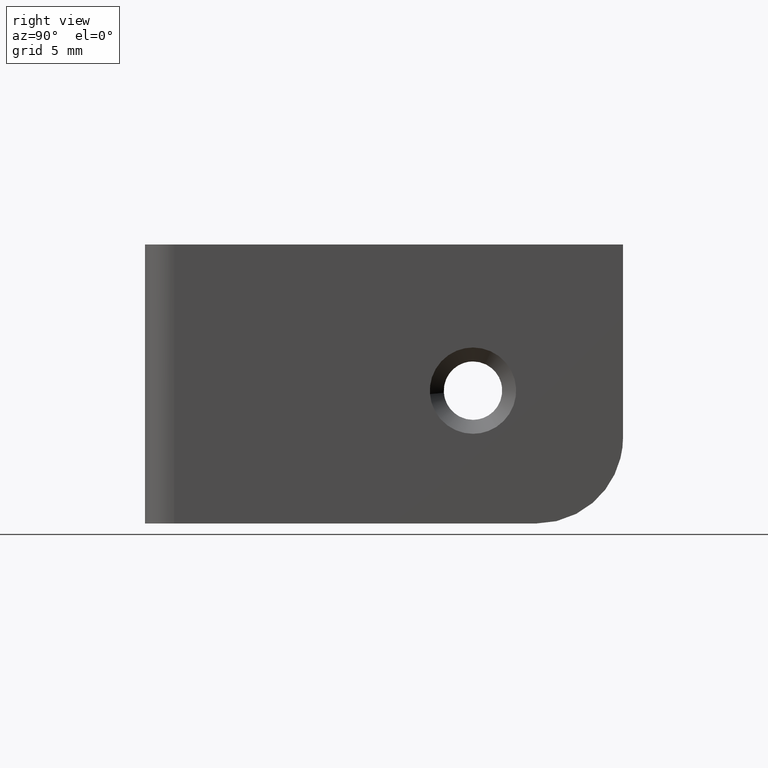
[diagram: clean part render]
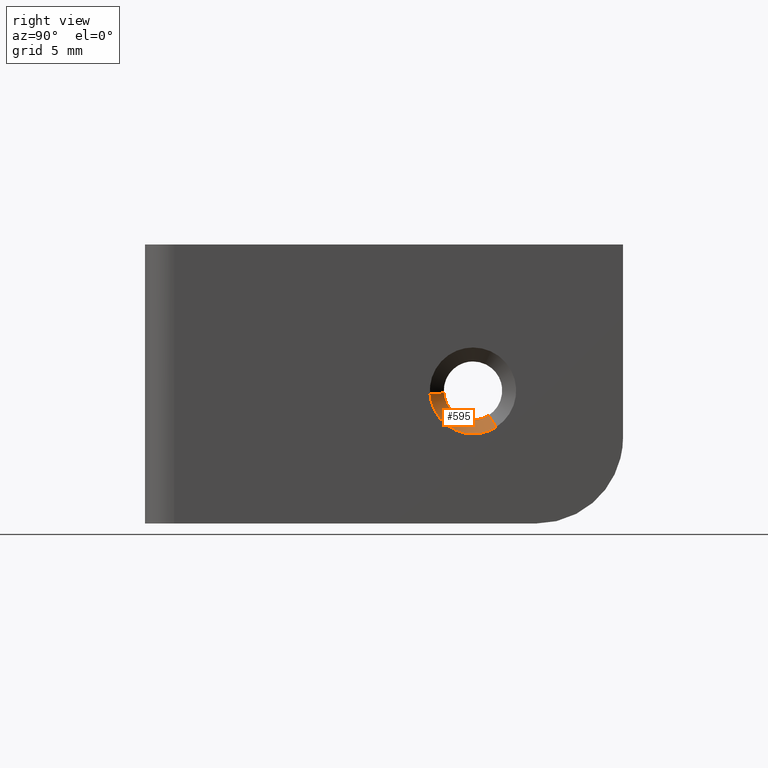
[diagram: same view with one face highlighted and labeled with its STEP entity id]
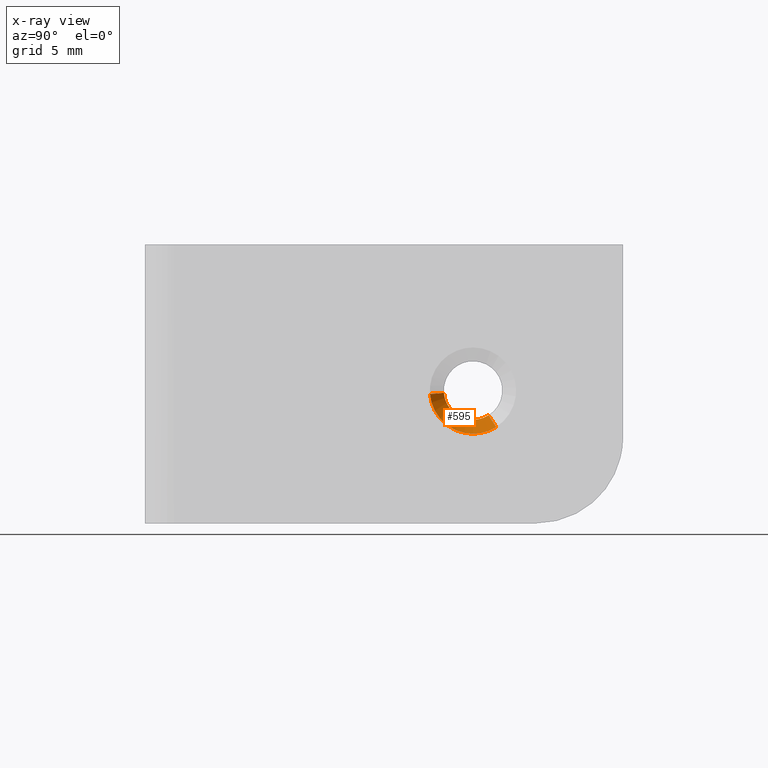
[diagram: x-ray of the same camera — body ghosted, the highlighted face saturated]
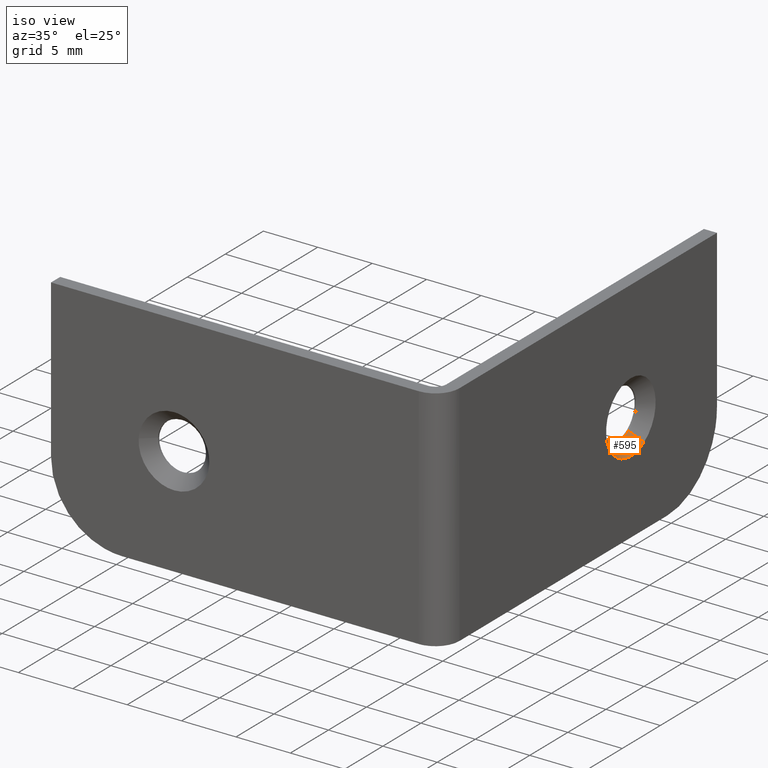
[diagram: same view with one face highlighted and labeled with its STEP entity id]
A machine part, right view. The second image highlights one B-rep face of the part: STEP entity #595.
The next image is the same camera in x-ray: the body ghosted, the highlighted face saturated — about 0% of this face is hidden behind the body in this view.
A second angle (iso view) of the same face is appended — the face is thin or edge-on in the first view.
In plain terms, the highlighted face is a freeform B-spline surface patch.
Its self-contained STEP definition (entity closure, byte-faithful):
#404=CARTESIAN_POINT('',(-1.049999999998008,25.883271745613801,8.145311892516467));
#405=VERTEX_POINT('',#404);
#421=CARTESIAN_POINT('',(2.692800E-012,26.448015078745200,7.260119841216241));
#422=VERTEX_POINT('',#421);
#423=CARTESIAN_POINT('',(-1.049999999998008,25.883271745613801,8.145311892516467));
#424=CARTESIAN_POINT('',(2.692800E-012,26.448015078745200,7.260119841216241));
#425=QUASI_UNIFORM_CURVE('',1,(#423,#424),.UNSPECIFIED.,.F.,.U.);
#426=EDGE_CURVE('',#405,#422,#425,.T.);
#445=CARTESIAN_POINT('',(1.813427E-012,21.460018665366619,9.745007938870440));
#446=VERTEX_POINT('',#445);
#462=CARTESIAN_POINT('',(-1.049999999995188,22.506781865785229,9.827389989361441));
#463=VERTEX_POINT('',#462);
#464=CARTESIAN_POINT('',(-1.049999999995188,22.506781865785229,9.827389989361441));
#465=CARTESIAN_POINT('',(1.813427E-012,21.460018665366619,9.745007938870440));
#466=QUASI_UNIFORM_CURVE('',1,(#464,#465),.UNSPECIFIED.,.F.,.U.);
#467=EDGE_CURVE('',#463,#446,#466,.T.);
#517=CARTESIAN_POINT('',(-1.076250000000000,22.532950945797609,9.829449540661596));
#518=CARTESIAN_POINT('',(-1.076250000000000,22.703501405136020,7.662400486459209));
#519=CARTESIAN_POINT('',(-1.076250000000000,24.870550459338400,7.832950945797611));
#520=CARTESIAN_POINT('',(-1.076250000000000,25.411608830290227,7.875533163083267));
#521=CARTESIAN_POINT('',(-1.076250000000000,25.869153162253689,8.167441693781010));
#522=CARTESIAN_POINT('',(0.026906249999996,21.433195358356581,9.742896898840074));
#523=CARTESIAN_POINT('',(0.026906249999996,21.690298459516494,6.476092257196653));
#524=CARTESIAN_POINT('',(0.026906249999996,24.957103101159920,6.733195358356579));
#525=CARTESIAN_POINT('',(0.026906249999996,25.772743150561581,6.797387622399005));
#526=CARTESIAN_POINT('',(0.026906249999996,26.462486626611316,7.237436794875944));
#534=(BOUNDED_SURFACE()B_SPLINE_SURFACE(2,1,((#517,#522),(#518,#523),(#519,#524),(#520,#525),(#521,#526)),.UNSPECIFIED.,.F.,.F.,.U.)B_SPLINE_SURFACE_WITH_KNOTS((3,2,3),(2,2),(0.0,5.429356045500637,7.166749980060842),(0.0,1.0),.UNSPECIFIED.)GEOMETRIC_REPRESENTATION_ITEM()RATIONAL_B_SPLINE_SURFACE(((1.0,1.0),(0.707106781186548,0.707106781186548),(1.0,1.0),(0.906274169979695,0.906274169979695),(0.872532871172386,0.872532871172386)))REPRESENTATION_ITEM('')SURFACE());
#535=CARTESIAN_POINT('',(-1.050000000000000,24.699999999999999,7.800000000000000));
#536=VERTEX_POINT('',#535);
#537=CARTESIAN_POINT('',(-1.049999999998008,25.883271745613794,8.145311892516467));
#538=CARTESIAN_POINT('',(-1.050000000000000,25.342021721874392,7.800000000000001));
#539=CARTESIAN_POINT('',(-1.050000000000000,24.699999999999999,7.800000000000000));
#547=(BOUNDED_CURVE()B_SPLINE_CURVE(2,(#537,#538,#539),.UNSPECIFIED.,.F.,.U.)B_SPLINE_CURVE_WITH_KNOTS((3,3),(0.407950112622453,0.500000000000000),.UNSPECIFIED.)CURVE()GEOMETRIC_REPRESENTATION_ITEM()RATIONAL_B_SPLINE_CURVE((0.863729296951775,0.892156848778297,1.0))REPRESENTATION_ITEM(''));
#548=EDGE_CURVE('',#405,#536,#547,.T.);
#549=ORIENTED_EDGE('',*,*,#548,.T.);
#550=CARTESIAN_POINT('',(-1.050000000000000,24.699999999999999,7.800000000000000));
#551=CARTESIAN_POINT('',(-1.050000000000000,22.666340918420630,7.799999999999999));
#552=CARTESIAN_POINT('',(-1.049999999995187,22.506781865785221,9.827389989361441));
#560=(BOUNDED_CURVE()B_SPLINE_CURVE(2,(#550,#551,#552),.UNSPECIFIED.,.F.,.U.)B_SPLINE_CURVE_WITH_KNOTS((3,3),(0.500000000000000,0.736331300626995),.UNSPECIFIED.)CURVE()GEOMETRIC_REPRESENTATION_ITEM()RATIONAL_B_SPLINE_CURVE((1.0,0.723120658611959,0.969723356159770))REPRESENTATION_ITEM(''));
#561=EDGE_CURVE('',#536,#463,#560,.T.);
#562=ORIENTED_EDGE('',*,*,#561,.T.);
#563=ORIENTED_EDGE('',*,*,#467,.T.);
#564=CARTESIAN_POINT('',(-3.940171E-015,24.699999999999999,6.750000000000001));
#565=VERTEX_POINT('',#564);
#566=CARTESIAN_POINT('',(-3.940171E-015,24.699999999999999,6.750000000000001));
#567=CARTESIAN_POINT('',(-3.940171E-015,21.695730902136713,6.750000000000001));
#568=CARTESIAN_POINT('',(1.813427E-012,21.460018665366622,9.745007938870440));
#576=(BOUNDED_CURVE()B_SPLINE_CURVE(2,(#566,#567,#568),.UNSPECIFIED.,.F.,.U.)B_SPLINE_CURVE_WITH_KNOTS((3,3),(0.500000000000000,0.736331300631294),.UNSPECIFIED.)CURVE()GEOMETRIC_REPRESENTATION_ITEM()RATIONAL_B_SPLINE_CURVE((1.0,0.723120658606922,0.969723356168742))REPRESENTATION_ITEM(''));
#577=EDGE_CURVE('',#565,#446,#576,.T.);
#578=ORIENTED_EDGE('',*,*,#577,.F.);
#579=CARTESIAN_POINT('',(2.692800E-012,26.448015078745197,7.260119841216241));
#580=CARTESIAN_POINT('',(-3.940171E-015,25.648441180038724,6.750000000000001));
#581=CARTESIAN_POINT('',(-3.940171E-015,24.699999999999999,6.750000000000001));
#589=(BOUNDED_CURVE()B_SPLINE_CURVE(2,(#579,#580,#581),.UNSPECIFIED.,.F.,.U.)B_SPLINE_CURVE_WITH_KNOTS((3,3),(0.407950112622711,0.500000000000000),.UNSPECIFIED.)CURVE()GEOMETRIC_REPRESENTATION_ITEM()RATIONAL_B_SPLINE_CURVE((0.863729296951935,0.892156848778600,1.0))REPRESENTATION_ITEM(''));
#590=EDGE_CURVE('',#422,#565,#589,.T.);
#591=ORIENTED_EDGE('',*,*,#590,.F.);
#592=ORIENTED_EDGE('',*,*,#426,.F.);
#593=EDGE_LOOP('',(#549,#562,#563,#578,#591,#592));
#594=FACE_OUTER_BOUND('',#593,.T.);
#595=ADVANCED_FACE('',(#594),#534,.F.);